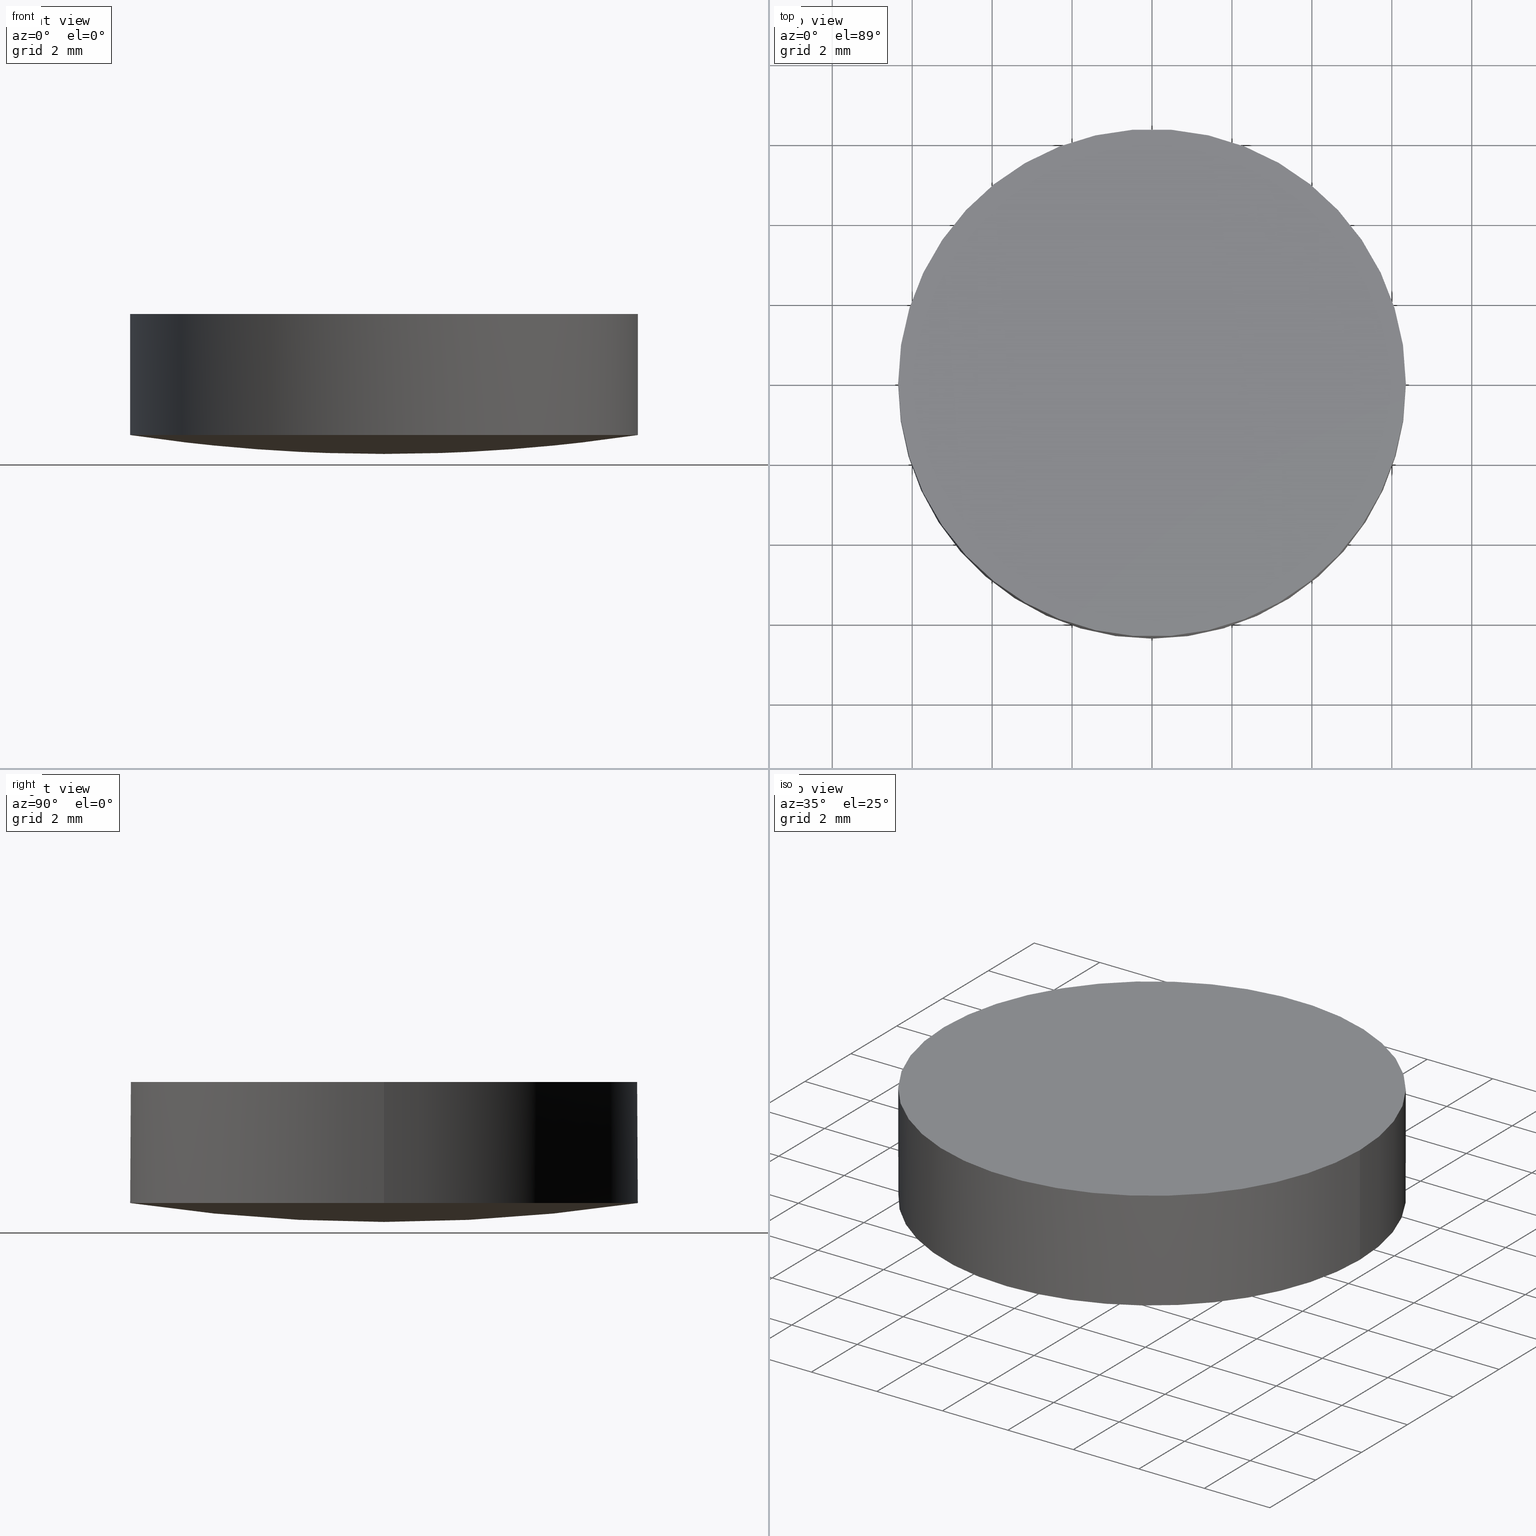
[diagram: canonical four-view strip — front | top / right | iso, engineering-drawing reading convention]
A machine part, canonical four-view strip (front | top / right | iso — engineering-drawing reading convention). The complete STEP part file that produces these views, byte-faithful:
ISO-10303-21;
HEADER;
FILE_DESCRIPTION (( 'STEP AP203' ),
    '1' );
FILE_NAME ('110-1114E UVFS pl-cx 12.7 F90.STEP',
    '2018-12-13T14:52:32',
    ( '' ),
    ( '' ),
    'SwSTEP 2.0',
    'SolidWorks 2017',
    '' );
FILE_SCHEMA (( 'CONFIG_CONTROL_DESIGN' ));
ENDSEC;

DATA;
#1 = CARTESIAN_POINT ( 'NONE',  ( -2.115045560822204500, 6.425627081475593800, 0.4845209326059024500 ) ) ;
#2 = CARTESIAN_POINT ( 'NONE',  ( 6.412075430496750900, 2.158144322370867000, 0.3178880206711990300 ) ) ;
#3 = CARTESIAN_POINT ( 'NONE',  ( 2.147358969697050300, -2.158144322370883800, -0.1627337046663991100 ) ) ;
#4 = VECTOR ( 'NONE', #173, 1000.000000000000000 ) ;
#5 = DIRECTION ( 'NONE',  ( 1.000000000000000000, 0.0000000000000000000, 0.0000000000000000000 ) ) ;
#6 =( BOUNDED_SURFACE ( )  B_SPLINE_SURFACE ( 3, 3, ( 
 ( #204, #90, #222, #19 ),
 ( #55, #223, #34, #182 ),
 ( #70, #89, #184, #15 ),
 ( #73, #92, #1, #224 ) ),
 .UNSPECIFIED., .F., .F., .F. ) 
 B_SPLINE_SURFACE_WITH_KNOTS ( ( 4, 4 ),
 ( 4, 4 ),
 ( 0.0000000000000000000, 1.000000000000000000 ),
 ( 0.0000000000000000000, 1.000000000000000000 ),
 .UNSPECIFIED. ) 
 GEOMETRIC_REPRESENTATION_ITEM ( )  RATIONAL_B_SPLINE_SURFACE ( (
 ( 1.000000000000000000, 0.9981350681121785600, 0.9981350681121785600, 1.000000000000000000),
 ( 0.9924617513402426100, 0.9906108777727250500, 0.9906108777727250500, 0.9924617513402426100),
 ( 0.9924617513402426100, 0.9906108777727250500, 0.9906108777727250500, 0.9924617513402426100),
 ( 1.000000000000000000, 0.9981350681121785600, 0.9981350681121785600, 1.000000000000000000) ) ) 
 REPRESENTATION_ITEM ( '' )  SURFACE ( )  );
#7 = APPROVAL ( #210, 'UNSPECIFIED' ) ;
#8 = FACE_OUTER_BOUND ( 'NONE', #98, .T. ) ;
#9 = APPLICATION_PROTOCOL_DEFINITION ( 'international standard', 'config_control_design', 1994, #171 ) ;
#10 = DIRECTION ( 'NONE',  ( -0.0000000000000000000, -0.0000000000000000000, -1.000000000000000000 ) ) ;
#11 = LINE ( 'NONE', #141, #4 ) ;
#12 = CARTESIAN_POINT ( 'NONE',  ( -6.349999999999999600, 1.998896044546239400E-015, 0.4731195107520910200 ) ) ;
#13 = PERSON ( 'UNSPECIFIED', 'UNSPECIFIED', 'UNSPECIFIED', ('UNSPECIFIED'), ('UNSPECIFIED'), ('UNSPECIFIED') ) ;
#14 = AXIS2_PLACEMENT_3D ( 'NONE', #51, #109, #165 ) ;
#15 = CARTESIAN_POINT ( 'NONE',  ( -1.994931997373327800E-014, 2.158144322370867000, -0.1627337046664018800 ) ) ;
#16 = CALENDAR_DATE ( 2018, 13, 12 ) ;
#17 = APPROVAL_PERSON_ORGANIZATION ( #30, #68, #132 ) ;
#18 = DIRECTION ( 'NONE',  ( -0.0000000000000000000, -0.0000000000000000000, -1.000000000000000000 ) ) ;
#19 = CARTESIAN_POINT ( 'NONE',  ( -1.994931997373328200E-014, -6.425627081475608900, 0.4845209326059019600 ) ) ;
#20 = DATE_AND_TIME ( #213, #27 ) ;
#21 =( LENGTH_UNIT ( ) NAMED_UNIT ( * ) SI_UNIT ( .MILLI., .METRE. ) );
#22 = ORIENTED_EDGE ( 'NONE', *, *, #188, .F. ) ;
#23 = APPLICATION_PROTOCOL_DEFINITION ( 'international standard', 'config_control_design', 1994, #40 ) ;
#24 = ADVANCED_FACE ( 'NONE', ( #218 ), #183, .T. ) ;
#25 = EDGE_CURVE ( 'NONE', #28, #116, #158, .T. ) ;
#26 = ADVANCED_FACE ( 'NONE', ( #168 ), #67, .T. ) ;
#27 = LOCAL_TIME ( 16, 52, 32.00000000000000000, #233 ) ;
#28 = VERTEX_POINT ( 'NONE', #12 ) ;
#29 = AXIS2_PLACEMENT_3D ( 'NONE', #234, #103, #221 ) ;
#30 = PERSON_AND_ORGANIZATION ( #13, #114 ) ;
#31 = AXIS2_PLACEMENT_3D ( 'NONE', #120, #196, #220 ) ;
#32 = VERTEX_POINT ( 'NONE', #119 ) ;
#33 = ORIENTED_EDGE ( 'NONE', *, *, #25, .F. ) ;
#34 = CARTESIAN_POINT ( 'NONE',  ( -2.147358969697073000, -2.158144322370883800, -0.1627337046664008900 ) ) ;
#35 = CARTESIAN_POINT ( 'NONE',  ( 2.498001805406600200E-016, 1.221245327087670000E-015, 3.500000000000000000 ) ) ;
#36 = ORIENTED_EDGE ( 'NONE', *, *, #64, .F. ) ;
#37 = CARTESIAN_POINT ( 'NONE',  ( -1.065814103640149800E-014, 2.158144322370867000, -0.1627337046663996100 ) ) ;
#38 = PERSON_AND_ORGANIZATION_ROLE ( 'design_owner' ) ;
#39 = AXIS2_PLACEMENT_3D ( 'NONE', #226, #172, #57 ) ;
#40 = APPLICATION_CONTEXT ( 'configuration controlled 3d designs of mechanical parts and assemblies' ) ;
#41 = CYLINDRICAL_SURFACE ( 'NONE', #63, 6.349999999999999600 ) ;
#42 = DIRECTION ( 'NONE',  ( -0.0000000000000000000, -0.0000000000000000000, -1.000000000000000000 ) ) ;
#43 = APPROVAL_STATUS ( 'not_yet_approved' ) ;
#44 = AXIS2_PLACEMENT_3D ( 'NONE', #157, #66, #198 ) ;
#45 = CALENDAR_DATE ( 2018, 13, 12 ) ;
#46 = CIRCLE ( 'NONE', #88, 6.349999999999999600 ) ;
#47 = CC_DESIGN_APPROVAL ( #68, ( #118 ) ) ;
#48 = ORIENTED_EDGE ( 'NONE', *, *, #212, .T. ) ;
#49 = COORDINATED_UNIVERSAL_TIME_OFFSET ( 2, 0, .AHEAD. ) ;
#50 = CC_DESIGN_APPROVAL ( #7, ( #128 ) ) ;
#51 = CARTESIAN_POINT ( 'NONE',  ( 2.498001805406600200E-016, 1.221245327087670000E-015, 0.4731195107520910200 ) ) ;
#52 = CARTESIAN_POINT ( 'NONE',  ( -1.065814103640150000E-014, -1.065814103640150000E-014, 42.85000000000000100 ) ) ;
#53 = LOCAL_TIME ( 16, 52, 32.00000000000000000, #49 ) ;
#54 = CARTESIAN_POINT ( 'NONE',  ( 4.288710922068330200, 2.158144322370867400, -0.002227129056137999600 ) ) ;
#55 = CARTESIAN_POINT ( 'NONE',  ( -6.412075430496756200, -2.158144322370882500, 0.3178880206711915400 ) ) ;
#56 = PERSON_AND_ORGANIZATION_ROLE ( 'classification_officer' ) ;
#57 = DIRECTION ( 'NONE',  ( 1.000000000000000000, 0.0000000000000000000, 0.0000000000000000000 ) ) ;
#58 = ADVANCED_FACE ( 'NONE', ( #8 ), #41, .T. ) ;
#59 = PERSON_AND_ORGANIZATION_ROLE ( 'design_supplier' ) ;
#60 = DATE_AND_TIME ( #16, #53 ) ;
#61 = CC_DESIGN_PERSON_AND_ORGANIZATION_ASSIGNMENT ( #101, #56, ( #128 ) ) ;
#62 = PERSON_AND_ORGANIZATION ( #13, #114 ) ;
#63 = AXIS2_PLACEMENT_3D ( 'NONE', #232, #86, #136 ) ;
#64 = EDGE_CURVE ( 'NONE', #32, #116, #208, .T. ) ;
#65 = ORIENTED_EDGE ( 'NONE', *, *, #169, .F. ) ;
#66 = DIRECTION ( 'NONE',  ( -0.0000000000000000000, -0.0000000000000000000, -1.000000000000000000 ) ) ;
#67 = PLANE ( 'NONE',  #29 ) ;
#68 = APPROVAL ( #43, 'UNSPECIFIED' ) ;
#69 = CARTESIAN_POINT ( 'NONE',  ( 2.115045560822182300, 6.425627081475593800, 0.4845209326059044000 ) ) ;
#70 = CARTESIAN_POINT ( 'NONE',  ( -6.412075430496756200, 2.158144322370867000, 0.3178880206711910400 ) ) ;
#71 = CARTESIAN_POINT ( 'NONE',  ( 6.412075430496750000, -2.158144322370882500, 0.3178880206711995900 ) ) ;
#72 = APPROVAL_DATE_TIME ( #60, #95 ) ;
#73 = CARTESIAN_POINT ( 'NONE',  ( -6.315586665438828200, 6.425627081475592900, 0.9579102731656630200 ) ) ;
#74 = VERTEX_POINT ( 'NONE', #235 ) ;
#75 = APPROVAL_STATUS ( 'not_yet_approved' ) ;
#76 = EDGE_CURVE ( 'NONE', #143, #214, #192, .T. ) ;
#77 = SECURITY_CLASSIFICATION_LEVEL ( 'unclassified' ) ;
#78 = DATE_TIME_ROLE ( 'classification_date' ) ;
#79 = CIRCLE ( 'NONE', #215, 6.349999999999999600 ) ;
#80 = CARTESIAN_POINT ( 'NONE',  ( 2.498001805406600200E-016, 1.221245327087670000E-015, 0.4731195107520910200 ) ) ;
#81 = CIRCLE ( 'NONE', #219, 6.349999999999999600 ) ;
#82 = CC_DESIGN_PERSON_AND_ORGANIZATION_ASSIGNMENT ( #186, #131, ( #118 ) ) ;
#83 = CARTESIAN_POINT ( 'NONE',  ( -6.349999999999999600, 1.998896044546239400E-015, 3.500000000000000000 ) ) ;
#84 = ORIENTED_EDGE ( 'NONE', *, *, #25, .T. ) ;
#85 = UNCERTAINTY_MEASURE_WITH_UNIT (LENGTH_MEASURE( 1.000000000000000100E-005 ), #21, 'distance_accuracy_value', 'NONE');
#86 = DIRECTION ( 'NONE',  ( 0.0000000000000000000, 0.0000000000000000000, 1.000000000000000000 ) ) ;
#87 = CC_DESIGN_PERSON_AND_ORGANIZATION_ASSIGNMENT ( #191, #149, ( #104 ) ) ;
#88 = AXIS2_PLACEMENT_3D ( 'NONE', #113, #42, #207 ) ;
#89 = CARTESIAN_POINT ( 'NONE',  ( -4.288710922068345300, 2.158144322370867400, -0.002227129056143909000 ) ) ;
#90 = CARTESIAN_POINT ( 'NONE',  ( -4.224174497778531800, -6.425627081475608900, 0.6426122089215428000 ) ) ;
#91 = CC_DESIGN_PERSON_AND_ORGANIZATION_ASSIGNMENT ( #62, #38, ( #159 ) ) ;
#92 = CARTESIAN_POINT ( 'NONE',  ( -4.224174497778531800, 6.425627081475593800, 0.6426122089215428000 ) ) ;
#93 = APPROVAL_PERSON_ORGANIZATION ( #167, #7, #96 ) ;
#94 = FACE_OUTER_BOUND ( 'NONE', #154, .T. ) ;
#95 = APPROVAL ( #75, 'UNSPECIFIED' ) ;
#96 = APPROVAL_ROLE ( '' ) ;
#97 = COORDINATED_UNIVERSAL_TIME_OFFSET ( 2, 0, .AHEAD. ) ;
#98 = EDGE_LOOP ( 'NONE', ( #33, #22, #130, #48, #180 ) ) ;
#99 = VECTOR ( 'NONE', #197, 1000.000000000000000 ) ;
#100 = CC_DESIGN_PERSON_AND_ORGANIZATION_ASSIGNMENT ( #153, #59, ( #104 ) ) ;
#101 = PERSON_AND_ORGANIZATION ( #13, #114 ) ;
#102 = CIRCLE ( 'NONE', #39, 6.349999999999999600 ) ;
#103 = DIRECTION ( 'NONE',  ( 0.0000000000000000000, 0.0000000000000000000, 1.000000000000000000 ) ) ;
#104 = PRODUCT_DEFINITION_FORMATION_WITH_SPECIFIED_SOURCE ( 'ANY', '', #159, .NOT_KNOWN. ) ;
#105 = LOCAL_TIME ( 16, 52, 32.00000000000000000, #156 ) ;
#106 = EDGE_LOOP ( 'NONE', ( #176, #84, #187, #133, #229 ) ) ;
#107 = CARTESIAN_POINT ( 'NONE',  ( 6.349999999999999600, 1.221245327087670000E-015, 0.4731195107520910200 ) ) ;
#108 = DIRECTION ( 'NONE',  ( 1.000000000000000000, 0.0000000000000000000, 0.0000000000000000000 ) ) ;
#109 = DIRECTION ( 'NONE',  ( -0.0000000000000000000, -0.0000000000000000000, -1.000000000000000000 ) ) ;
#110 = CARTESIAN_POINT ( 'NONE',  ( -1.065814103640150000E-014, -6.425627081475608900, 0.4845209326059044000 ) ) ;
#111 = ORIENTED_EDGE ( 'NONE', *, *, #181, .T. ) ;
#112 = CC_DESIGN_SECURITY_CLASSIFICATION ( #128, ( #104 ) ) ;
#113 = CARTESIAN_POINT ( 'NONE',  ( 2.498001805406600200E-016, 1.221245327087670000E-015, 0.4731195107520910200 ) ) ;
#114 = ORGANIZATION ( 'UNSPECIFIED', 'UNSPECIFIED', '' ) ;
#115 = ADVANCED_FACE ( 'NONE', ( #94 ), #177, .T. ) ;
#116 = VERTEX_POINT ( 'NONE', #83 ) ;
#117 = DESIGN_CONTEXT ( 'detailed design', #171, 'design' ) ;
#118 = PRODUCT_DEFINITION ( 'UNKNOWN', '', #104, #117 ) ;
#119 = CARTESIAN_POINT ( 'NONE',  ( 6.349999999999999600, 1.221245327087670000E-015, 3.500000000000000000 ) ) ;
#120 = CARTESIAN_POINT ( 'NONE',  ( 2.498001805406600200E-016, 1.221245327087670000E-015, 0.4731195107520910200 ) ) ;
#121 = CARTESIAN_POINT ( 'NONE',  ( -6.349999999999999600, 1.998896044546239400E-015, 0.4731195107520910200 ) ) ;
#122 = CARTESIAN_POINT ( 'NONE',  ( -1.065814103640149800E-014, -2.158144322370882500, -0.1627337046663991100 ) ) ;
#123 = CARTESIAN_POINT ( 'NONE',  ( -1.065814103640150000E-014, 6.425627081475592900, 0.4845209326059044000 ) ) ;
#124 = DIRECTION ( 'NONE',  ( 0.0000000000000000000, -1.000000000000000000, 0.0000000000000000000 ) ) ;
#125 = LOCAL_TIME ( 16, 52, 32.00000000000000000, #97 ) ;
#126 = CARTESIAN_POINT ( 'NONE',  ( 6.315586665438821100, 6.425627081475592900, 0.9579102731656710100 ) ) ;
#127 = CIRCLE ( 'NONE', #200, 42.85000000000000100 ) ;
#128 = SECURITY_CLASSIFICATION ( '', '', #77 ) ;
#129 = DIRECTION ( 'NONE',  ( 0.0000000000000000000, 0.0000000000000000000, 1.000000000000000000 ) ) ;
#130 = ORIENTED_EDGE ( 'NONE', *, *, #181, .F. ) ;
#131 = PERSON_AND_ORGANIZATION_ROLE ( 'creator' ) ;
#132 = APPROVAL_ROLE ( '' ) ;
#133 = ORIENTED_EDGE ( 'NONE', *, *, #212, .F. ) ;
#134 = FACE_OUTER_BOUND ( 'NONE', #227, .T. ) ;
#135 = CC_DESIGN_DATE_AND_TIME_ASSIGNMENT ( #20, #78, ( #128 ) ) ;
#136 = DIRECTION ( 'NONE',  ( 1.000000000000000000, 0.0000000000000000000, 0.0000000000000000000 ) ) ;
#137 = CALENDAR_DATE ( 2018, 13, 12 ) ;
#138 = ORIENTED_EDGE ( 'NONE', *, *, #194, .T. ) ;
#139 = CARTESIAN_POINT ( 'NONE',  ( 4.224174497778516700, 6.425627081475593800, 0.6426122089215488000 ) ) ;
#140 = CC_DESIGN_APPROVAL ( #95, ( #104 ) ) ;
#141 = CARTESIAN_POINT ( 'NONE',  ( 6.349999999999999600, 1.221245327087670000E-015, 0.4731195107520910200 ) ) ;
#142 = APPROVAL_DATE_TIME ( #146, #7 ) ;
#143 = VERTEX_POINT ( 'NONE', #166 ) ;
#144 = CARTESIAN_POINT ( 'NONE',  ( 2.115045560822182300, -6.425627081475608900, 0.4845209326059044000 ) ) ;
#145 = MECHANICAL_CONTEXT ( 'NONE', #40, 'mechanical' ) ;
#146 = DATE_AND_TIME ( #45, #105 ) ;
#147 = ORIENTED_EDGE ( 'NONE', *, *, #188, .T. ) ;
#148 = PRODUCT_RELATED_PRODUCT_CATEGORY ( 'detail', '', ( #159 ) ) ;
#149 = PERSON_AND_ORGANIZATION_ROLE ( 'creator' ) ;
#150 =( NAMED_UNIT ( * ) PLANE_ANGLE_UNIT ( ) SI_UNIT ( $, .RADIAN. ) );
#151 = APPROVAL_PERSON_ORGANIZATION ( #202, #95, #170 ) ;
#152 = ORIENTED_EDGE ( 'NONE', *, *, #179, .F. ) ;
#153 = PERSON_AND_ORGANIZATION ( #13, #114 ) ;
#154 = EDGE_LOOP ( 'NONE', ( #111, #203, #195 ) ) ;
#155 = CALENDAR_DATE ( 2018, 13, 12 ) ;
#156 = COORDINATED_UNIVERSAL_TIME_OFFSET ( 2, 0, .AHEAD. ) ;
#157 = CARTESIAN_POINT ( 'NONE',  ( 2.498001805406600200E-016, 1.221245327087670000E-015, 3.500000000000000000 ) ) ;
#158 = LINE ( 'NONE', #121, #99 ) ;
#159 = PRODUCT ( '110-1114E UVFS pl-cx 12.7 F90', '110-1114E UVFS pl-cx 12.7 F90', '', ( #145 ) ) ;
#160 =( GEOMETRIC_REPRESENTATION_CONTEXT ( 3 ) GLOBAL_UNCERTAINTY_ASSIGNED_CONTEXT ( ( #85 ) ) GLOBAL_UNIT_ASSIGNED_CONTEXT ( ( #21, #150, #190 ) ) REPRESENTATION_CONTEXT ( 'NONE', 'WORKASPACE' ) );
#161 = APPROVAL_DATE_TIME ( #231, #68 ) ;
#162 = SHAPE_DEFINITION_REPRESENTATION ( #193, #216 ) ;
#163 = CARTESIAN_POINT ( 'NONE',  ( 4.288710922068329300, -2.158144322370883800, -0.002227129056137403300 ) ) ;
#164 = CARTESIAN_POINT ( 'NONE',  ( 6.315586665438821100, -6.425627081475608900, 0.9579102731656710100 ) ) ;
#165 = DIRECTION ( 'NONE',  ( 1.000000000000000000, 0.0000000000000000000, 0.0000000000000000000 ) ) ;
#166 = CARTESIAN_POINT ( 'NONE',  ( -1.065814103640150000E-014, 6.350000000000000500, 0.4731195107520927400 ) ) ;
#167 = PERSON_AND_ORGANIZATION ( #13, #114 ) ;
#168 = FACE_OUTER_BOUND ( 'NONE', #225, .T. ) ;
#169 = EDGE_CURVE ( 'NONE', #74, #143, #127, .T. ) ;
#170 = APPROVAL_ROLE ( '' ) ;
#171 = APPLICATION_CONTEXT ( 'configuration controlled 3d designs of mechanical parts and assemblies' ) ;
#172 = DIRECTION ( 'NONE',  ( -0.0000000000000000000, -0.0000000000000000000, -1.000000000000000000 ) ) ;
#173 = DIRECTION ( 'NONE',  ( 0.0000000000000000000, 0.0000000000000000000, 1.000000000000000000 ) ) ;
#174 = DATE_TIME_ROLE ( 'creation_date' ) ;
#175 = ADVANCED_FACE ( 'NONE', ( #134 ), #6, .T. ) ;
#176 = ORIENTED_EDGE ( 'NONE', *, *, #194, .F. ) ;
#177 =( BOUNDED_SURFACE ( )  B_SPLINE_SURFACE ( 3, 3, ( 
 ( #110, #144, #201, #164 ),
 ( #122, #3, #163, #71 ),
 ( #37, #206, #54, #2 ),
 ( #123, #69, #139, #126 ) ),
 .UNSPECIFIED., .F., .F., .F. ) 
 B_SPLINE_SURFACE_WITH_KNOTS ( ( 4, 4 ),
 ( 4, 4 ),
 ( 0.0000000000000000000, 1.000000000000000000 ),
 ( 0.0000000000000000000, 1.000000000000000000 ),
 .UNSPECIFIED. ) 
 GEOMETRIC_REPRESENTATION_ITEM ( )  RATIONAL_B_SPLINE_SURFACE ( (
 ( 1.000000000000000000, 0.9981350681121785600, 0.9981350681121785600, 1.000000000000000000),
 ( 0.9924617513402426100, 0.9906108777727250500, 0.9906108777727250500, 0.9924617513402426100),
 ( 0.9924617513402426100, 0.9906108777727250500, 0.9906108777727250500, 0.9924617513402426100),
 ( 1.000000000000000000, 0.9981350681121785600, 0.9981350681121785600, 1.000000000000000000) ) ) 
 REPRESENTATION_ITEM ( '' )  SURFACE ( )  );
#178 = LOCAL_TIME ( 16, 52, 32.00000000000000000, #211 ) ;
#179 = EDGE_CURVE ( 'NONE', #116, #32, #81, .T. ) ;
#180 = ORIENTED_EDGE ( 'NONE', *, *, #64, .T. ) ;
#181 = EDGE_CURVE ( 'NONE', #214, #74, #102, .T. ) ;
#182 = CARTESIAN_POINT ( 'NONE',  ( -1.994931997373327800E-014, -2.158144322370882500, -0.1627337046664013000 ) ) ;
#183 = CYLINDRICAL_SURFACE ( 'NONE', #31, 6.349999999999999600 ) ;
#184 = CARTESIAN_POINT ( 'NONE',  ( -2.147358969697073000, 2.158144322370867400, -0.1627337046664014400 ) ) ;
#185 = CARTESIAN_POINT ( 'NONE',  ( 0.0000000000000000000, 0.0000000000000000000, 0.0000000000000000000 ) ) ;
#186 = PERSON_AND_ORGANIZATION ( #13, #114 ) ;
#187 = ORIENTED_EDGE ( 'NONE', *, *, #179, .T. ) ;
#188 = EDGE_CURVE ( 'NONE', #74, #28, #79, .T. ) ;
#189 = DIRECTION ( 'NONE',  ( 1.000000000000000000, 0.0000000000000000000, 0.0000000000000000000 ) ) ;
#190 =( NAMED_UNIT ( * ) SI_UNIT ( $, .STERADIAN. ) SOLID_ANGLE_UNIT ( ) );
#191 = PERSON_AND_ORGANIZATION ( #13, #114 ) ;
#192 = CIRCLE ( 'NONE', #14, 6.349999999999999600 ) ;
#193 = PRODUCT_DEFINITION_SHAPE ( 'NONE', 'NONE',  #118 ) ;
#194 = EDGE_CURVE ( 'NONE', #28, #143, #46, .T. ) ;
#195 = ORIENTED_EDGE ( 'NONE', *, *, #76, .T. ) ;
#196 = DIRECTION ( 'NONE',  ( 0.0000000000000000000, 0.0000000000000000000, 1.000000000000000000 ) ) ;
#197 = DIRECTION ( 'NONE',  ( 0.0000000000000000000, 0.0000000000000000000, 1.000000000000000000 ) ) ;
#198 = DIRECTION ( 'NONE',  ( 1.000000000000000000, 0.0000000000000000000, 0.0000000000000000000 ) ) ;
#199 = CLOSED_SHELL ( 'NONE', ( #115, #24, #175, #58, #26 ) ) ;
#200 = AXIS2_PLACEMENT_3D ( 'NONE', #52, #5, #124 ) ;
#201 = CARTESIAN_POINT ( 'NONE',  ( 4.224174497778516700, -6.425627081475608900, 0.6426122089215488000 ) ) ;
#202 = PERSON_AND_ORGANIZATION ( #13, #114 ) ;
#203 = ORIENTED_EDGE ( 'NONE', *, *, #169, .T. ) ;
#204 = CARTESIAN_POINT ( 'NONE',  ( -6.315586665438828200, -6.425627081475608900, 0.9579102731656630200 ) ) ;
#205 = MANIFOLD_SOLID_BREP ( 'Imported1', #199 ) ;
#206 = CARTESIAN_POINT ( 'NONE',  ( 2.147358969697050300, 2.158144322370867400, -0.1627337046663996400 ) ) ;
#207 = DIRECTION ( 'NONE',  ( 1.000000000000000000, 0.0000000000000000000, 0.0000000000000000000 ) ) ;
#208 = CIRCLE ( 'NONE', #44, 6.349999999999999600 ) ;
#209 = DIRECTION ( 'NONE',  ( 1.000000000000000000, 0.0000000000000000000, 0.0000000000000000000 ) ) ;
#210 = APPROVAL_STATUS ( 'not_yet_approved' ) ;
#211 = COORDINATED_UNIVERSAL_TIME_OFFSET ( 2, 0, .AHEAD. ) ;
#212 = EDGE_CURVE ( 'NONE', #214, #32, #11, .T. ) ;
#213 = CALENDAR_DATE ( 2018, 13, 12 ) ;
#214 = VERTEX_POINT ( 'NONE', #107 ) ;
#215 = AXIS2_PLACEMENT_3D ( 'NONE', #80, #10, #209 ) ;
#216 = ADVANCED_BREP_SHAPE_REPRESENTATION ( '110-1114E UVFS pl-cx 12.7 F90', ( #205, #230 ), #160 ) ;
#217 = DATE_AND_TIME ( #137, #125 ) ;
#218 = FACE_OUTER_BOUND ( 'NONE', #106, .T. ) ;
#219 = AXIS2_PLACEMENT_3D ( 'NONE', #35, #18, #108 ) ;
#220 = DIRECTION ( 'NONE',  ( 1.000000000000000000, 0.0000000000000000000, 0.0000000000000000000 ) ) ;
#221 = DIRECTION ( 'NONE',  ( 1.000000000000000000, 0.0000000000000000000, -0.0000000000000000000 ) ) ;
#222 = CARTESIAN_POINT ( 'NONE',  ( -2.115045560822204500, -6.425627081475608900, 0.4845209326059024500 ) ) ;
#223 = CARTESIAN_POINT ( 'NONE',  ( -4.288710922068345300, -2.158144322370883800, -0.002227129056143366900 ) ) ;
#224 = CARTESIAN_POINT ( 'NONE',  ( -1.994931997373328200E-014, 6.425627081475592900, 0.4845209326059019600 ) ) ;
#225 = EDGE_LOOP ( 'NONE', ( #36, #152 ) ) ;
#226 = CARTESIAN_POINT ( 'NONE',  ( 2.498001805406600200E-016, 1.221245327087670000E-015, 0.4731195107520910200 ) ) ;
#227 = EDGE_LOOP ( 'NONE', ( #65, #147, #138 ) ) ;
#228 = CC_DESIGN_DATE_AND_TIME_ASSIGNMENT ( #217, #174, ( #118 ) ) ;
#229 = ORIENTED_EDGE ( 'NONE', *, *, #76, .F. ) ;
#230 = AXIS2_PLACEMENT_3D ( 'NONE', #185, #129, #189 ) ;
#231 = DATE_AND_TIME ( #155, #178 ) ;
#232 = CARTESIAN_POINT ( 'NONE',  ( 2.498001805406600200E-016, 1.221245327087670000E-015, 0.4731195107520910200 ) ) ;
#233 = COORDINATED_UNIVERSAL_TIME_OFFSET ( 2, 0, .AHEAD. ) ;
#234 = CARTESIAN_POINT ( 'NONE',  ( 0.0000000000000000000, 13.15799999999999900, 3.500000000000000000 ) ) ;
#235 = CARTESIAN_POINT ( 'NONE',  ( -1.065814103640150000E-014, -6.350000000000010300, 0.4731195107520927400 ) ) ;
ENDSEC;
END-ISO-10303-21;
